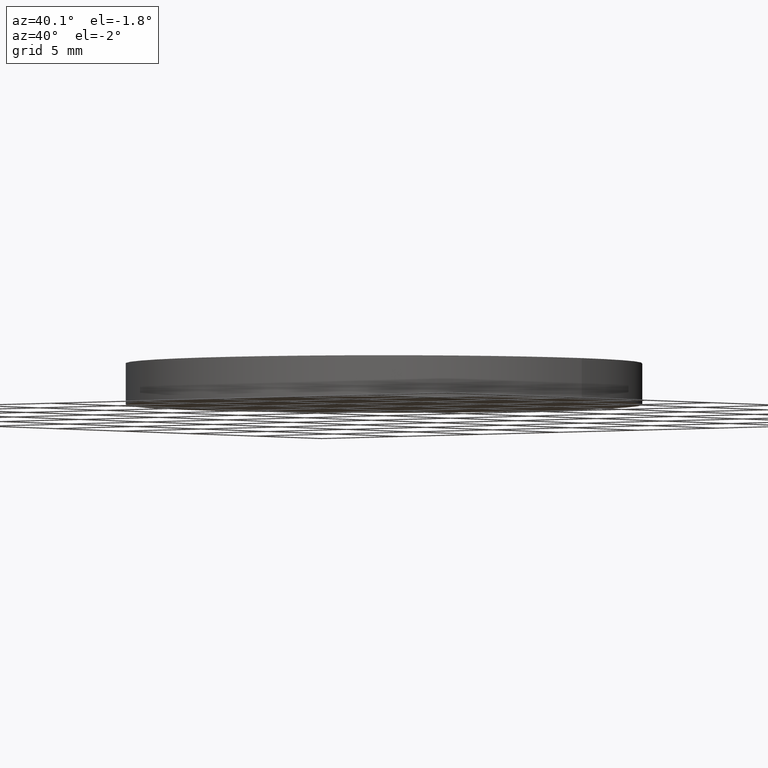
[diagram: clean part render]
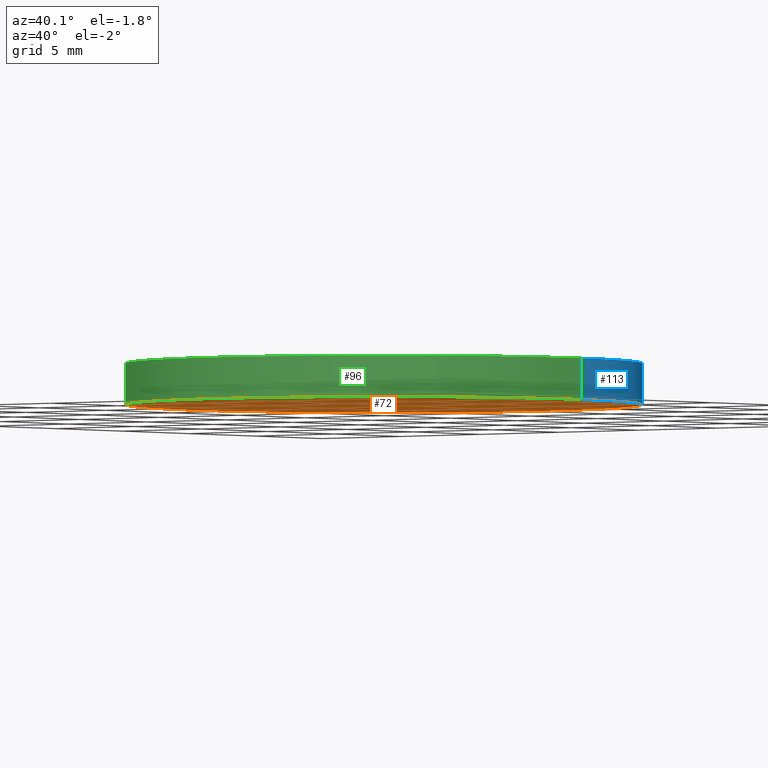
[diagram: same view with three faces highlighted in distinct colors, each labeled with its STEP entity id]
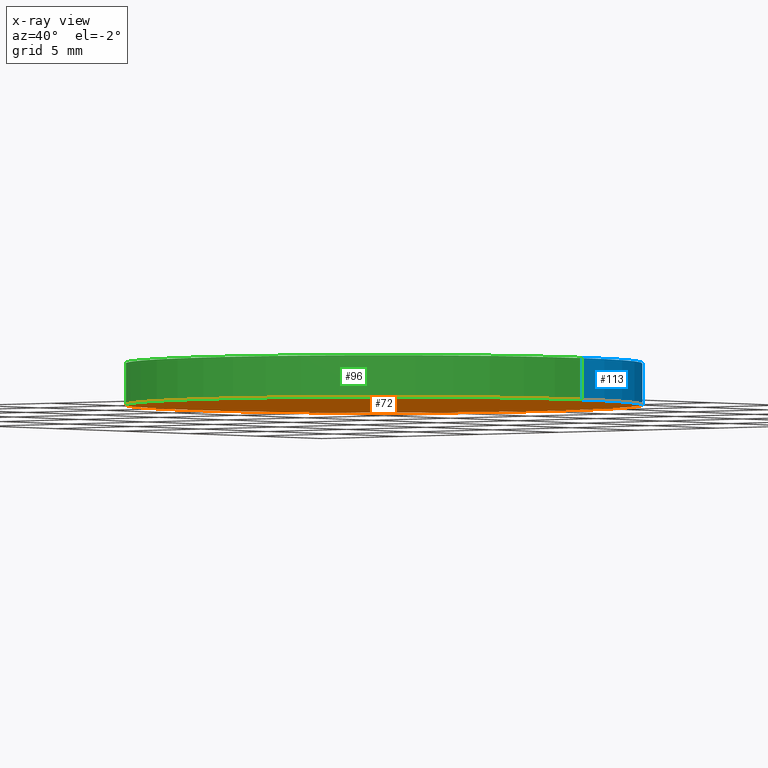
[diagram: x-ray of the same camera — body ghosted, the three highlighted faces saturated]
A machine part, auxiliary view with three faces highlighted in distinct colors.
The next image is the same camera in x-ray (body ghosted, the three faces saturated) — at least one of them is partly hidden behind the body in this view.
Their STEP definitions:

[orange] entity #72 — the highlighted planar face has unit normal (0, 0, 1).
#4 = CARTESIAN_POINT ( 'NONE',  ( 0.0000000000000000000, 0.0000000000000000000, 0.0000000000000000000 ) ) ;
#14 = AXIS2_PLACEMENT_3D ( 'NONE', #26, #43, #115 ) ;
#19 = CARTESIAN_POINT ( 'NONE',  ( 12.50000000000000000, 1.530808498934191500E-015, 0.0000000000000000000 ) ) ;
#26 = CARTESIAN_POINT ( 'NONE',  ( 0.0000000000000000000, 0.0000000000000000000, 0.0000000000000000000 ) ) ;
#43 = DIRECTION ( 'NONE',  ( 0.0000000000000000000, 0.0000000000000000000, 1.000000000000000000 ) ) ;
#48 = CARTESIAN_POINT ( 'NONE',  ( -12.50000000000000000, 0.0000000000000000000, 0.0000000000000000000 ) ) ;
#52 = DIRECTION ( 'NONE',  ( 1.000000000000000000, 0.0000000000000000000, 0.0000000000000000000 ) ) ;
#53 = PLANE ( 'NONE',  #127 ) ;
#57 = EDGE_CURVE ( 'NONE', #66, #87, #86, .T. ) ;
#61 = ORIENTED_EDGE ( 'NONE', *, *, #57, .F. ) ;
#66 = VERTEX_POINT ( 'NONE', #19 ) ;
#72 = ADVANCED_FACE ( 'NONE', ( #93 ), #53, .F. ) ;
#73 = CIRCLE ( 'NONE', #14, 12.50000000000000000 ) ;
#77 = EDGE_CURVE ( 'NONE', #87, #66, #73, .T. ) ;
#83 = AXIS2_PLACEMENT_3D ( 'NONE', #4, #117, #52 ) ;
#86 = CIRCLE ( 'NONE', #83, 12.50000000000000000 ) ;
#87 = VERTEX_POINT ( 'NONE', #48 ) ;
#93 = FACE_OUTER_BOUND ( 'NONE', #116, .T. ) ;
#108 = DIRECTION ( 'NONE',  ( 1.000000000000000000, 0.0000000000000000000, -0.0000000000000000000 ) ) ;
#114 = ORIENTED_EDGE ( 'NONE', *, *, #77, .F. ) ;
#115 = DIRECTION ( 'NONE',  ( 1.000000000000000000, 0.0000000000000000000, 0.0000000000000000000 ) ) ;
#116 = EDGE_LOOP ( 'NONE', ( #114, #61 ) ) ;
#117 = DIRECTION ( 'NONE',  ( 0.0000000000000000000, 0.0000000000000000000, 1.000000000000000000 ) ) ;
#127 = AXIS2_PLACEMENT_3D ( 'NONE', #134, #132, #108 ) ;
#132 = DIRECTION ( 'NONE',  ( 0.0000000000000000000, 0.0000000000000000000, 1.000000000000000000 ) ) ;
#134 = CARTESIAN_POINT ( 'NONE',  ( 0.0000000000000000000, 0.0000000000000000000, 0.0000000000000000000 ) ) ;

[blue] entity #113 — the highlighted cylindrical surface (partial cylindrical patch) has radius 12.5 mm, axis along (-0, -0, -1).
#4 = CARTESIAN_POINT ( 'NONE',  ( 0.0000000000000000000, 0.0000000000000000000, 0.0000000000000000000 ) ) ;
#8 = ORIENTED_EDGE ( 'NONE', *, *, #64, .F. ) ;
#10 = EDGE_CURVE ( 'NONE', #106, #87, #60, .T. ) ;
#19 = CARTESIAN_POINT ( 'NONE',  ( 12.50000000000000000, 1.530808498934191500E-015, 0.0000000000000000000 ) ) ;
#21 = CARTESIAN_POINT ( 'NONE',  ( -12.50000000000000000, 0.0000000000000000000, 2.000000000000000000 ) ) ;
#23 = ORIENTED_EDGE ( 'NONE', *, *, #10, .F. ) ;
#25 = AXIS2_PLACEMENT_3D ( 'NONE', #125, #40, #94 ) ;
#27 = ORIENTED_EDGE ( 'NONE', *, *, #71, .T. ) ;
#29 = DIRECTION ( 'NONE',  ( -0.0000000000000000000, -0.0000000000000000000, -1.000000000000000000 ) ) ;
#34 = VERTEX_POINT ( 'NONE', #107 ) ;
#36 = DIRECTION ( 'NONE',  ( -0.0000000000000000000, -0.0000000000000000000, -1.000000000000000000 ) ) ;
#40 = DIRECTION ( 'NONE',  ( -0.0000000000000000000, -0.0000000000000000000, -1.000000000000000000 ) ) ;
#41 = VECTOR ( 'NONE', #29, 1000.000000000000000 ) ;
#44 = CARTESIAN_POINT ( 'NONE',  ( 0.0000000000000000000, 0.0000000000000000000, 2.000000000000000000 ) ) ;
#45 = ORIENTED_EDGE ( 'NONE', *, *, #57, .T. ) ;
#46 = DIRECTION ( 'NONE',  ( 0.0000000000000000000, 0.0000000000000000000, 1.000000000000000000 ) ) ;
#48 = CARTESIAN_POINT ( 'NONE',  ( -12.50000000000000000, 0.0000000000000000000, 0.0000000000000000000 ) ) ;
#49 = CYLINDRICAL_SURFACE ( 'NONE', #25, 12.50000000000000000 ) ;
#52 = DIRECTION ( 'NONE',  ( 1.000000000000000000, 0.0000000000000000000, 0.0000000000000000000 ) ) ;
#54 = VECTOR ( 'NONE', #36, 1000.000000000000000 ) ;
#57 = EDGE_CURVE ( 'NONE', #66, #87, #86, .T. ) ;
#58 = FACE_OUTER_BOUND ( 'NONE', #109, .T. ) ;
#60 = LINE ( 'NONE', #21, #54 ) ;
#64 = EDGE_CURVE ( 'NONE', #34, #106, #138, .T. ) ;
#66 = VERTEX_POINT ( 'NONE', #19 ) ;
#71 = EDGE_CURVE ( 'NONE', #34, #66, #101, .T. ) ;
#83 = AXIS2_PLACEMENT_3D ( 'NONE', #4, #117, #52 ) ;
#86 = CIRCLE ( 'NONE', #83, 12.50000000000000000 ) ;
#87 = VERTEX_POINT ( 'NONE', #48 ) ;
#92 = DIRECTION ( 'NONE',  ( 1.000000000000000000, 0.0000000000000000000, 0.0000000000000000000 ) ) ;
#94 = DIRECTION ( 'NONE',  ( -1.000000000000000000, 0.0000000000000000000, 0.0000000000000000000 ) ) ;
#99 = AXIS2_PLACEMENT_3D ( 'NONE', #44, #46, #92 ) ;
#101 = LINE ( 'NONE', #120, #41 ) ;
#106 = VERTEX_POINT ( 'NONE', #136 ) ;
#107 = CARTESIAN_POINT ( 'NONE',  ( 12.50000000000000000, 1.530808498934191500E-015, 2.000000000000000000 ) ) ;
#109 = EDGE_LOOP ( 'NONE', ( #8, #27, #45, #23 ) ) ;
#113 = ADVANCED_FACE ( 'NONE', ( #58 ), #49, .T. ) ;
#117 = DIRECTION ( 'NONE',  ( 0.0000000000000000000, 0.0000000000000000000, 1.000000000000000000 ) ) ;
#120 = CARTESIAN_POINT ( 'NONE',  ( 12.50000000000000000, 1.530808498934191500E-015, 2.000000000000000000 ) ) ;
#125 = CARTESIAN_POINT ( 'NONE',  ( 0.0000000000000000000, 0.0000000000000000000, 2.000000000000000000 ) ) ;
#136 = CARTESIAN_POINT ( 'NONE',  ( -12.50000000000000000, 0.0000000000000000000, 2.000000000000000000 ) ) ;
#138 = CIRCLE ( 'NONE', #99, 12.50000000000000000 ) ;

[green] entity #96 — the highlighted cylindrical surface (partial cylindrical patch) has radius 12.5 mm, axis along (-0, -0, -1).
#3 = CARTESIAN_POINT ( 'NONE',  ( 0.0000000000000000000, 0.0000000000000000000, 2.000000000000000000 ) ) ;
#10 = EDGE_CURVE ( 'NONE', #106, #87, #60, .T. ) ;
#11 = EDGE_CURVE ( 'NONE', #106, #34, #76, .T. ) ;
#14 = AXIS2_PLACEMENT_3D ( 'NONE', #26, #43, #115 ) ;
#17 = FACE_OUTER_BOUND ( 'NONE', #90, .T. ) ;
#19 = CARTESIAN_POINT ( 'NONE',  ( 12.50000000000000000, 1.530808498934191500E-015, 0.0000000000000000000 ) ) ;
#21 = CARTESIAN_POINT ( 'NONE',  ( -12.50000000000000000, 0.0000000000000000000, 2.000000000000000000 ) ) ;
#26 = CARTESIAN_POINT ( 'NONE',  ( 0.0000000000000000000, 0.0000000000000000000, 0.0000000000000000000 ) ) ;
#29 = DIRECTION ( 'NONE',  ( -0.0000000000000000000, -0.0000000000000000000, -1.000000000000000000 ) ) ;
#30 = ORIENTED_EDGE ( 'NONE', *, *, #77, .T. ) ;
#31 = AXIS2_PLACEMENT_3D ( 'NONE', #129, #98, #35 ) ;
#34 = VERTEX_POINT ( 'NONE', #107 ) ;
#35 = DIRECTION ( 'NONE',  ( -1.000000000000000000, 0.0000000000000000000, 0.0000000000000000000 ) ) ;
#36 = DIRECTION ( 'NONE',  ( -0.0000000000000000000, -0.0000000000000000000, -1.000000000000000000 ) ) ;
#41 = VECTOR ( 'NONE', #29, 1000.000000000000000 ) ;
#42 = ORIENTED_EDGE ( 'NONE', *, *, #71, .F. ) ;
#43 = DIRECTION ( 'NONE',  ( 0.0000000000000000000, 0.0000000000000000000, 1.000000000000000000 ) ) ;
#48 = CARTESIAN_POINT ( 'NONE',  ( -12.50000000000000000, 0.0000000000000000000, 0.0000000000000000000 ) ) ;
#54 = VECTOR ( 'NONE', #36, 1000.000000000000000 ) ;
#59 = AXIS2_PLACEMENT_3D ( 'NONE', #3, #78, #91 ) ;
#60 = LINE ( 'NONE', #21, #54 ) ;
#65 = ORIENTED_EDGE ( 'NONE', *, *, #11, .F. ) ;
#66 = VERTEX_POINT ( 'NONE', #19 ) ;
#67 = ORIENTED_EDGE ( 'NONE', *, *, #10, .T. ) ;
#71 = EDGE_CURVE ( 'NONE', #34, #66, #101, .T. ) ;
#73 = CIRCLE ( 'NONE', #14, 12.50000000000000000 ) ;
#76 = CIRCLE ( 'NONE', #59, 12.50000000000000000 ) ;
#77 = EDGE_CURVE ( 'NONE', #87, #66, #73, .T. ) ;
#78 = DIRECTION ( 'NONE',  ( 0.0000000000000000000, 0.0000000000000000000, 1.000000000000000000 ) ) ;
#79 = CYLINDRICAL_SURFACE ( 'NONE', #31, 12.50000000000000000 ) ;
#87 = VERTEX_POINT ( 'NONE', #48 ) ;
#90 = EDGE_LOOP ( 'NONE', ( #42, #65, #67, #30 ) ) ;
#91 = DIRECTION ( 'NONE',  ( 1.000000000000000000, 0.0000000000000000000, 0.0000000000000000000 ) ) ;
#96 = ADVANCED_FACE ( 'NONE', ( #17 ), #79, .T. ) ;
#98 = DIRECTION ( 'NONE',  ( -0.0000000000000000000, -0.0000000000000000000, -1.000000000000000000 ) ) ;
#101 = LINE ( 'NONE', #120, #41 ) ;
#106 = VERTEX_POINT ( 'NONE', #136 ) ;
#107 = CARTESIAN_POINT ( 'NONE',  ( 12.50000000000000000, 1.530808498934191500E-015, 2.000000000000000000 ) ) ;
#115 = DIRECTION ( 'NONE',  ( 1.000000000000000000, 0.0000000000000000000, 0.0000000000000000000 ) ) ;
#120 = CARTESIAN_POINT ( 'NONE',  ( 12.50000000000000000, 1.530808498934191500E-015, 2.000000000000000000 ) ) ;
#129 = CARTESIAN_POINT ( 'NONE',  ( 0.0000000000000000000, 0.0000000000000000000, 2.000000000000000000 ) ) ;
#136 = CARTESIAN_POINT ( 'NONE',  ( -12.50000000000000000, 0.0000000000000000000, 2.000000000000000000 ) ) ;